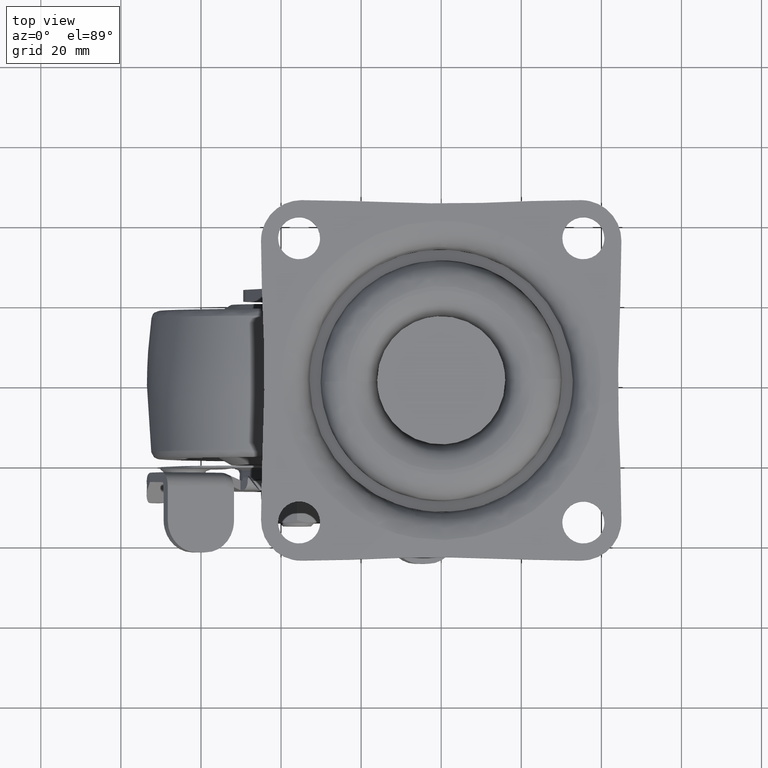
[diagram: clean part render]
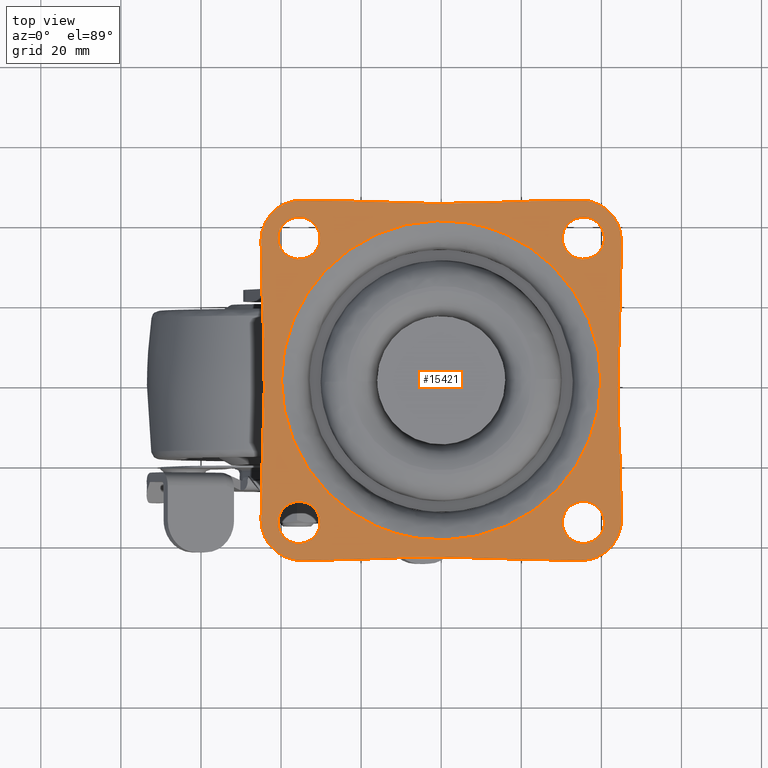
[diagram: same view with one face highlighted and labeled with its STEP entity id]
A machine part, top view. The second image highlights one B-rep face of the part: STEP entity #15421.
In plain terms, the highlighted face is a freeform B-spline surface patch.
Its self-contained STEP definition (entity closure, byte-faithful):
#14844=CARTESIAN_POINT('',(-49.506265960209539,49.506265952679193,0.0));
#14845=CARTESIAN_POINT('',(49.506267570937290,49.506265952679193,0.0));
#14846=CARTESIAN_POINT('',(-49.506265960209539,-49.506267570579041,0.0));
#14847=CARTESIAN_POINT('',(49.506267570937290,-49.506267570579041,0.0));
#14848=B_SPLINE_SURFACE_WITH_KNOTS('',1,1,((#14844,#14846),(#14845,#14847)),.UNSPECIFIED.,.F.,.F.,.U.,(2,2),(2,2),(0.0,99.012533531146829),(0.0,99.012533523258242),.UNSPECIFIED.);
#14849=CARTESIAN_POINT('',(-22.568478716295200,44.780493398808453,0.0));
#14850=VERTEX_POINT('',#14849);
#14851=CARTESIAN_POINT('',(22.568440034629148,44.780491658686650,0.0));
#14852=VERTEX_POINT('',#14851);
#14853=CARTESIAN_POINT('',(-22.568478716295200,44.780493398808453,0.0));
#14854=CARTESIAN_POINT('',(-0.000019385621304,43.618738991454634,0.0));
#14855=CARTESIAN_POINT('',(22.568440047520092,44.780491408261511,0.0));
#14863=(BOUNDED_CURVE()B_SPLINE_CURVE(2,(#14853,#14854,#14855),.UNSPECIFIED.,.F.,.U.)CURVE()GEOMETRIC_REPRESENTATION_ITEM()QUASI_UNIFORM_CURVE()RATIONAL_B_SPLINE_CURVE((1.0,0.998677693841607,1.0))REPRESENTATION_ITEM(''));
#14864=EDGE_CURVE('',#14850,#14852,#14863,.T.);
#14865=ORIENTED_EDGE('',*,*,#14864,.F.);
#14866=CARTESIAN_POINT('',(-34.911363999999949,45.000030000000002,0.0));
#14867=VERTEX_POINT('',#14866);
#14868=CARTESIAN_POINT('',(-22.568478716295200,44.780493398808453,0.0));
#14869=CARTESIAN_POINT('',(-28.736938143472610,45.057985333240623,0.0));
#14870=CARTESIAN_POINT('',(-34.911364001323740,45.000030141035900,0.0));
#14878=(BOUNDED_CURVE()B_SPLINE_CURVE(2,(#14868,#14869,#14870),.UNSPECIFIED.,.F.,.U.)CURVE()GEOMETRIC_REPRESENTATION_ITEM()QUASI_UNIFORM_CURVE()RATIONAL_B_SPLINE_CURVE((1.0,0.999630899807016,1.0))REPRESENTATION_ITEM(''));
#14879=EDGE_CURVE('',#14850,#14867,#14878,.T.);
#14880=ORIENTED_EDGE('',*,*,#14879,.T.);
#14881=CARTESIAN_POINT('',(-45.000029999988797,34.911379028132103,0.0));
#14882=VERTEX_POINT('',#14881);
#14883=CARTESIAN_POINT('',(-34.911363999999949,45.000030000000031,0.0));
#14884=CARTESIAN_POINT('',(-45.000014971879075,45.000030000000031,0.0));
#14885=CARTESIAN_POINT('',(-45.000029999988740,34.911379028132103,0.0));
#14893=(BOUNDED_CURVE()B_SPLINE_CURVE(2,(#14883,#14884,#14885),.UNSPECIFIED.,.F.,.U.)CURVE()GEOMETRIC_REPRESENTATION_ITEM()QUASI_UNIFORM_CURVE()RATIONAL_B_SPLINE_CURVE((1.0,0.707107307841416,1.0))REPRESENTATION_ITEM(''));
#14894=EDGE_CURVE('',#14867,#14882,#14893,.T.);
#14895=ORIENTED_EDGE('',*,*,#14894,.T.);
#14896=CARTESIAN_POINT('',(-44.780491321962650,22.568438371059301,0.0));
#14897=VERTEX_POINT('',#14896);
#14898=CARTESIAN_POINT('',(-45.000029999988840,34.911379028132231,0.0));
#14899=CARTESIAN_POINT('',(-45.057985860885104,28.736925442227552,0.0));
#14900=CARTESIAN_POINT('',(-44.780491583320732,22.568438359301879,0.0));
#14908=(BOUNDED_CURVE()B_SPLINE_CURVE(2,(#14898,#14899,#14900),.UNSPECIFIED.,.F.,.U.)CURVE()GEOMETRIC_REPRESENTATION_ITEM()QUASI_UNIFORM_CURVE()RATIONAL_B_SPLINE_CURVE((1.0,0.999630896493283,1.0))REPRESENTATION_ITEM(''));
#14909=EDGE_CURVE('',#14882,#14897,#14908,.T.);
#14910=ORIENTED_EDGE('',*,*,#14909,.T.);
#14911=CARTESIAN_POINT('',(-44.780491658686550,-22.568440034628949,0.0));
#14912=VERTEX_POINT('',#14911);
#14913=CARTESIAN_POINT('',(-44.780491658686550,-22.568440034628949,0.0));
#14914=CARTESIAN_POINT('',(-43.618740032628445,-0.000000840451468,0.0));
#14915=CARTESIAN_POINT('',(-44.780491321962657,22.568438371059269,0.0));
#14923=(BOUNDED_CURVE()B_SPLINE_CURVE(2,(#14913,#14914,#14915),.UNSPECIFIED.,.F.,.U.)CURVE()GEOMETRIC_REPRESENTATION_ITEM()QUASI_UNIFORM_CURVE()RATIONAL_B_SPLINE_CURVE((1.0,0.998677696207034,1.0))REPRESENTATION_ITEM(''));
#14924=EDGE_CURVE('',#14912,#14897,#14923,.T.);
#14925=ORIENTED_EDGE('',*,*,#14924,.F.);
#14926=CARTESIAN_POINT('',(-45.000030000000002,-34.911363999999999,0.0));
#14927=VERTEX_POINT('',#14926);
#14928=CARTESIAN_POINT('',(-44.780491658686643,-22.568440034628900,0.0));
#14929=CARTESIAN_POINT('',(-45.057985515089854,-28.736918769632716,0.0));
#14930=CARTESIAN_POINT('',(-45.000030141035900,-34.911364001323733,0.0));
#14938=(BOUNDED_CURVE()B_SPLINE_CURVE(2,(#14928,#14929,#14930),.UNSPECIFIED.,.F.,.U.)CURVE()GEOMETRIC_REPRESENTATION_ITEM()QUASI_UNIFORM_CURVE()RATIONAL_B_SPLINE_CURVE((1.0,0.999630897492002,1.0))REPRESENTATION_ITEM(''));
#14939=EDGE_CURVE('',#14912,#14927,#14938,.T.);
#14940=ORIENTED_EDGE('',*,*,#14939,.T.);
#14941=CARTESIAN_POINT('',(-34.911379028074201,-45.000029999989202,0.0));
#14942=VERTEX_POINT('',#14941);
#14943=CARTESIAN_POINT('',(-45.000029999999931,-34.911363999999999,0.0));
#14944=CARTESIAN_POINT('',(-45.000029999999924,-45.000014971936935,0.0));
#14945=CARTESIAN_POINT('',(-34.911379028074187,-45.000029999988790,0.0));
#14953=(BOUNDED_CURVE()B_SPLINE_CURVE(2,(#14943,#14944,#14945),.UNSPECIFIED.,.F.,.U.)CURVE()GEOMETRIC_REPRESENTATION_ITEM()QUASI_UNIFORM_CURVE()RATIONAL_B_SPLINE_CURVE((1.0,0.707107307839390,1.0))REPRESENTATION_ITEM(''));
#14954=EDGE_CURVE('',#14927,#14942,#14953,.T.);
#14955=ORIENTED_EDGE('',*,*,#14954,.T.);
#14956=CARTESIAN_POINT('',(-22.568478716295200,-44.780493398808453,0.0));
#14957=VERTEX_POINT('',#14956);
#14958=CARTESIAN_POINT('',(-34.911379028074201,-45.000029999989202,0.0));
#14959=CARTESIAN_POINT('',(-28.736945655131464,-45.057985671157233,0.0));
#14960=CARTESIAN_POINT('',(-22.568478716295250,-44.780493398808460,0.0));
#14968=(BOUNDED_CURVE()B_SPLINE_CURVE(2,(#14958,#14959,#14960),.UNSPECIFIED.,.F.,.U.)CURVE()GEOMETRIC_REPRESENTATION_ITEM()QUASI_UNIFORM_CURVE()RATIONAL_B_SPLINE_CURVE((1.0,0.999630898908567,1.0))REPRESENTATION_ITEM(''));
#14969=EDGE_CURVE('',#14942,#14957,#14968,.T.);
#14970=ORIENTED_EDGE('',*,*,#14969,.T.);
#14971=CARTESIAN_POINT('',(22.568440034628999,-44.780491658686451,0.0));
#14972=VERTEX_POINT('',#14971);
#14973=CARTESIAN_POINT('',(22.568440034628999,-44.780491658686451,0.0));
#14974=CARTESIAN_POINT('',(-0.000019385621631,-43.618738991454634,0.0));
#14975=CARTESIAN_POINT('',(-22.568478716295161,-44.780493398808566,0.0));
#14983=(BOUNDED_CURVE()B_SPLINE_CURVE(2,(#14973,#14974,#14975),.UNSPECIFIED.,.F.,.U.)CURVE()GEOMETRIC_REPRESENTATION_ITEM()QUASI_UNIFORM_CURVE()RATIONAL_B_SPLINE_CURVE((1.0,0.998677693841607,1.0))REPRESENTATION_ITEM(''));
#14984=EDGE_CURVE('',#14972,#14957,#14983,.T.);
#14985=ORIENTED_EDGE('',*,*,#14984,.F.);
#14986=CARTESIAN_POINT('',(34.911363000000101,-45.000030000000002,0.0));
#14987=VERTEX_POINT('',#14986);
#14988=CARTESIAN_POINT('',(22.568440034628999,-44.780491658686451,0.0));
#14989=CARTESIAN_POINT('',(28.736918269790962,-45.057985492604097,0.0));
#14990=CARTESIAN_POINT('',(34.911363001411928,-45.000030150421402,0.0));
#14998=(BOUNDED_CURVE()B_SPLINE_CURVE(2,(#14988,#14989,#14990),.UNSPECIFIED.,.F.,.U.)CURVE()GEOMETRIC_REPRESENTATION_ITEM()QUASI_UNIFORM_CURVE()RATIONAL_B_SPLINE_CURVE((1.0,0.999630897551787,1.0))REPRESENTATION_ITEM(''));
#14999=EDGE_CURVE('',#14972,#14987,#14998,.T.);
#15000=ORIENTED_EDGE('',*,*,#14999,.T.);
#15001=CARTESIAN_POINT('',(45.000028999266803,-34.911485639563899,0.0));
#15002=VERTEX_POINT('',#15001);
#15003=CARTESIAN_POINT('',(34.911363000000101,-45.000029999999981,0.0));
#15004=CARTESIAN_POINT('',(44.999907361169470,-45.000029999999981,0.0));
#15005=CARTESIAN_POINT('',(45.000028999266767,-34.911485639563899,0.0));
#15013=(BOUNDED_CURVE()B_SPLINE_CURVE(2,(#15003,#15004,#15005),.UNSPECIFIED.,.F.,.U.)CURVE()GEOMETRIC_REPRESENTATION_ITEM()QUASI_UNIFORM_CURVE()RATIONAL_B_SPLINE_CURVE((1.0,0.707111043985080,1.0))REPRESENTATION_ITEM(''));
#15014=EDGE_CURVE('',#14987,#15002,#15013,.T.);
#15015=ORIENTED_EDGE('',*,*,#15014,.T.);
#15016=CARTESIAN_POINT('',(44.780491321962650,-22.568438371060051,0.0));
#15017=VERTEX_POINT('',#15016);
#15018=CARTESIAN_POINT('',(45.000028999266803,-34.911485639563928,0.0));
#15019=CARTESIAN_POINT('',(45.057988258337225,-28.736978735768531,0.0));
#15020=CARTESIAN_POINT('',(44.780491583320760,-22.568438359302661,0.0));
#15028=(BOUNDED_CURVE()B_SPLINE_CURVE(2,(#15018,#15019,#15020),.UNSPECIFIED.,.F.,.U.)CURVE()GEOMETRIC_REPRESENTATION_ITEM()QUASI_UNIFORM_CURVE()RATIONAL_B_SPLINE_CURVE((1.0,0.999630890118939,1.0))REPRESENTATION_ITEM(''));
#15029=EDGE_CURVE('',#15002,#15017,#15028,.T.);
#15030=ORIENTED_EDGE('',*,*,#15029,.T.);
#15031=CARTESIAN_POINT('',(44.780491658686600,22.568440034629049,0.0));
#15032=VERTEX_POINT('',#15031);
#15033=CARTESIAN_POINT('',(44.780491658686600,22.568440034629049,0.0));
#15034=CARTESIAN_POINT('',(43.618740032628445,0.000000840451329,0.0));
#15035=CARTESIAN_POINT('',(44.780491321962707,-22.568438371059990,0.0));
#15043=(BOUNDED_CURVE()B_SPLINE_CURVE(2,(#15033,#15034,#15035),.UNSPECIFIED.,.F.,.U.)CURVE()GEOMETRIC_REPRESENTATION_ITEM()QUASI_UNIFORM_CURVE()RATIONAL_B_SPLINE_CURVE((1.0,0.998677696207034,1.0))REPRESENTATION_ITEM(''));
#15044=EDGE_CURVE('',#15032,#15017,#15043,.T.);
#15045=ORIENTED_EDGE('',*,*,#15044,.F.);
#15046=CARTESIAN_POINT('',(45.000030000000002,34.911363000000101,0.0));
#15047=VERTEX_POINT('',#15046);
#15048=CARTESIAN_POINT('',(44.780491658686643,22.568440034629031,0.0));
#15049=CARTESIAN_POINT('',(45.057985492604097,28.736918269790991,0.0));
#15050=CARTESIAN_POINT('',(45.000030150421402,34.911363001411971,0.0));
#15058=(BOUNDED_CURVE()B_SPLINE_CURVE(2,(#15048,#15049,#15050),.UNSPECIFIED.,.F.,.U.)CURVE()GEOMETRIC_REPRESENTATION_ITEM()QUASI_UNIFORM_CURVE()RATIONAL_B_SPLINE_CURVE((1.0,0.999630897551787,1.0))REPRESENTATION_ITEM(''));
#15059=EDGE_CURVE('',#15032,#15047,#15058,.T.);
#15060=ORIENTED_EDGE('',*,*,#15059,.T.);
#15061=CARTESIAN_POINT('',(34.911485639562201,45.000028999266803,0.0));
#15062=VERTEX_POINT('',#15061);
#15063=CARTESIAN_POINT('',(45.000030000000031,34.911363000000101,0.0));
#15064=CARTESIAN_POINT('',(45.000030000000031,44.999907361171225,0.0));
#15065=CARTESIAN_POINT('',(34.911485639562201,45.000028999266767,0.0));
#15073=(BOUNDED_CURVE()B_SPLINE_CURVE(2,(#15063,#15064,#15065),.UNSPECIFIED.,.F.,.U.)CURVE()GEOMETRIC_REPRESENTATION_ITEM()QUASI_UNIFORM_CURVE()RATIONAL_B_SPLINE_CURVE((1.0,0.707111043985018,1.0))REPRESENTATION_ITEM(''));
#15074=EDGE_CURVE('',#15047,#15062,#15073,.T.);
#15075=ORIENTED_EDGE('',*,*,#15074,.T.);
#15076=CARTESIAN_POINT('',(34.911485639562201,45.000028999266803,0.0));
#15077=CARTESIAN_POINT('',(28.736979574860289,45.057988250460731,0.0));
#15078=CARTESIAN_POINT('',(22.568440034629148,44.780491658686643,0.0));
#15086=(BOUNDED_CURVE()B_SPLINE_CURVE(2,(#15076,#15077,#15078),.UNSPECIFIED.,.F.,.U.)CURVE()GEOMETRIC_REPRESENTATION_ITEM()QUASI_UNIFORM_CURVE()RATIONAL_B_SPLINE_CURVE((1.0,0.999630890219205,1.0))REPRESENTATION_ITEM(''));
#15087=EDGE_CURVE('',#15062,#14852,#15086,.T.);
#15088=ORIENTED_EDGE('',*,*,#15087,.T.);
#15089=EDGE_LOOP('',(#14865,#14880,#14895,#14910,#14925,#14940,#14955,#14970,#14985,#15000,#15015,#15030,#15045,#15060,#15075,#15088));
#15090=FACE_OUTER_BOUND('',#15089,.T.);
#15091=CARTESIAN_POINT('',(39.875000000000000,0.0,0.0));
#15092=VERTEX_POINT('',#15091);
#15093=CARTESIAN_POINT('',(-16.065894123711971,-36.495241757099201,-1.189567E-015));
#15094=VERTEX_POINT('',#15093);
#15095=CARTESIAN_POINT('',(39.875000000000000,0.0,0.0));
#15096=CARTESIAN_POINT('',(39.875000000159119,-39.874999999638518,-3.880305E-016));
#15097=CARTESIAN_POINT('',(4.030339E-010,-39.874999999084451,-9.828143E-016));
#15098=CARTESIAN_POINT('',(-8.388444417866742,-39.874999998967873,-1.107938E-015));
#15099=CARTESIAN_POINT('',(-16.065894123711974,-36.495241757099208,-1.189567E-015));
#15107=(BOUNDED_CURVE()B_SPLINE_CURVE(2,(#15095,#15096,#15097,#15098,#15099),.UNSPECIFIED.,.F.,.U.)B_SPLINE_CURVE_WITH_KNOTS((3,2,3),(0.500000000000000,0.750000000000000,0.818414990139051),.UNSPECIFIED.)CURVE()GEOMETRIC_REPRESENTATION_ITEM()RATIONAL_B_SPLINE_CURVE((1.0,0.707106781186548,1.0,0.919846853292332,0.883563120517615))REPRESENTATION_ITEM(''));
#15108=EDGE_CURVE('',#15092,#15094,#15107,.T.);
#15109=ORIENTED_EDGE('',*,*,#15108,.T.);
#15110=CARTESIAN_POINT('',(-39.875000000000000,0.0,0.0));
#15111=VERTEX_POINT('',#15110);
#15112=CARTESIAN_POINT('',(-16.065894123711974,-36.495241757099208,-1.189567E-015));
#15113=CARTESIAN_POINT('',(-39.874999999756085,-26.014024049143494,-5.947837E-016));
#15114=CARTESIAN_POINT('',(-39.875000000000000,0.0,0.0));
#15122=(BOUNDED_CURVE()B_SPLINE_CURVE(2,(#15112,#15113,#15114),.UNSPECIFIED.,.F.,.U.)B_SPLINE_CURVE_WITH_KNOTS((3,3),(0.818414990139051,1.0),.UNSPECIFIED.)CURVE()GEOMETRIC_REPRESENTATION_ITEM()RATIONAL_B_SPLINE_CURVE((0.883563120517615,0.787259927894216,1.0))REPRESENTATION_ITEM(''));
#15123=EDGE_CURVE('',#15094,#15111,#15122,.T.);
#15124=ORIENTED_EDGE('',*,*,#15123,.T.);
#15125=CARTESIAN_POINT('',(16.065894123711981,36.495241757099201,-1.189567E-015));
#15126=VERTEX_POINT('',#15125);
#15127=CARTESIAN_POINT('',(-39.875000000000000,0.0,0.0));
#15128=CARTESIAN_POINT('',(-39.875000000159119,39.874999999638518,-3.880305E-016));
#15129=CARTESIAN_POINT('',(-4.030427E-010,39.874999999084451,-9.828143E-016));
#15130=CARTESIAN_POINT('',(8.388444417866740,39.874999998967880,-1.107938E-015));
#15131=CARTESIAN_POINT('',(16.065894123711978,36.495241757099201,-1.189567E-015));
#15139=(BOUNDED_CURVE()B_SPLINE_CURVE(2,(#15127,#15128,#15129,#15130,#15131),.UNSPECIFIED.,.F.,.U.)B_SPLINE_CURVE_WITH_KNOTS((3,2,3),(0.0,0.250000000000000,0.318414990139051),.UNSPECIFIED.)CURVE()GEOMETRIC_REPRESENTATION_ITEM()RATIONAL_B_SPLINE_CURVE((1.0,0.707106781186548,1.0,0.919846853292332,0.883563120517615))REPRESENTATION_ITEM(''));
#15140=EDGE_CURVE('',#15111,#15126,#15139,.T.);
#15141=ORIENTED_EDGE('',*,*,#15140,.T.);
#15142=CARTESIAN_POINT('',(16.065894123711978,36.495241757099201,-1.189567E-015));
#15143=CARTESIAN_POINT('',(39.874999999756085,26.014024049143483,-5.947837E-016));
#15144=CARTESIAN_POINT('',(39.875000000000000,0.0,0.0));
#15152=(BOUNDED_CURVE()B_SPLINE_CURVE(2,(#15142,#15143,#15144),.UNSPECIFIED.,.F.,.U.)B_SPLINE_CURVE_WITH_KNOTS((3,3),(0.318414990139051,0.500000000000000),.UNSPECIFIED.)CURVE()GEOMETRIC_REPRESENTATION_ITEM()RATIONAL_B_SPLINE_CURVE((0.883563120517615,0.787259927894216,1.0))REPRESENTATION_ITEM(''));
#15153=EDGE_CURVE('',#15126,#15092,#15152,.T.);
#15154=ORIENTED_EDGE('',*,*,#15153,.T.);
#15155=EDGE_LOOP('',(#15109,#15124,#15141,#15154));
#15156=FACE_BOUND('',#15155,.T.);
#15157=CARTESIAN_POINT('',(-30.250000000000000,-35.500000000000000,0.0));
#15158=VERTEX_POINT('',#15157);
#15159=CARTESIAN_POINT('',(-35.179495167114169,-30.259792308305251,-8.326673E-017));
#15160=VERTEX_POINT('',#15159);
#15161=CARTESIAN_POINT('',(-30.250000000000000,-35.500000000000000,0.0));
#15162=CARTESIAN_POINT('',(-30.249999999999996,-30.561293149054634,0.0));
#15163=CARTESIAN_POINT('',(-35.179495167114162,-30.259792308305236,0.0));
#15171=(BOUNDED_CURVE()B_SPLINE_CURVE(2,(#15161,#15162,#15163),.UNSPECIFIED.,.F.,.U.)B_SPLINE_CURVE_WITH_KNOTS((3,3),(0.500000000000000,0.739332962231174),.UNSPECIFIED.)CURVE()GEOMETRIC_REPRESENTATION_ITEM()RATIONAL_B_SPLINE_CURVE((1.0,0.719603993295812,0.976072041650067))REPRESENTATION_ITEM(''));
#15172=EDGE_CURVE('',#15158,#15160,#15171,.T.);
#15173=ORIENTED_EDGE('',*,*,#15172,.F.);
#15174=CARTESIAN_POINT('',(-35.820504832885831,-40.740207691694749,-8.326673E-017));
#15175=VERTEX_POINT('',#15174);
#15176=CARTESIAN_POINT('',(-35.820504832885838,-40.740207691694742,0.0));
#15177=CARTESIAN_POINT('',(-35.660402007481970,-40.749999999999986,0.0));
#15178=CARTESIAN_POINT('',(-35.500000000000000,-40.749999999999993,0.0));
#15179=CARTESIAN_POINT('',(-30.249999999999986,-40.749999999999986,0.0));
#15180=CARTESIAN_POINT('',(-30.250000000000000,-35.500000000000000,0.0));
#15188=(BOUNDED_CURVE()B_SPLINE_CURVE(2,(#15176,#15177,#15178,#15179,#15180),.UNSPECIFIED.,.F.,.U.)B_SPLINE_CURVE_WITH_KNOTS((3,2,3),(0.239332962231174,0.250000000000000,0.500000000000000),.UNSPECIFIED.)CURVE()GEOMETRIC_REPRESENTATION_ITEM()RATIONAL_B_SPLINE_CURVE((0.976072041650066,0.987502787890735,1.0,0.707106781186547,1.0))REPRESENTATION_ITEM(''));
#15189=EDGE_CURVE('',#15175,#15158,#15188,.T.);
#15190=ORIENTED_EDGE('',*,*,#15189,.F.);
#15191=CARTESIAN_POINT('',(-40.749999999999993,-35.500000000000000,0.0));
#15192=VERTEX_POINT('',#15191);
#15193=CARTESIAN_POINT('',(-40.749999999999993,-35.500000000000000,0.0));
#15194=CARTESIAN_POINT('',(-40.750000000000000,-40.438706850945344,0.0));
#15195=CARTESIAN_POINT('',(-35.820504832885838,-40.740207691694742,0.0));
#15203=(BOUNDED_CURVE()B_SPLINE_CURVE(2,(#15193,#15194,#15195),.UNSPECIFIED.,.F.,.U.)B_SPLINE_CURVE_WITH_KNOTS((3,3),(0.0,0.239332962231174),.UNSPECIFIED.)CURVE()GEOMETRIC_REPRESENTATION_ITEM()RATIONAL_B_SPLINE_CURVE((1.0,0.719603993295812,0.976072041650066))REPRESENTATION_ITEM(''));
#15204=EDGE_CURVE('',#15192,#15175,#15203,.T.);
#15205=ORIENTED_EDGE('',*,*,#15204,.F.);
#15206=CARTESIAN_POINT('',(-35.179495167114162,-30.259792308305236,0.0));
#15207=CARTESIAN_POINT('',(-35.339597992518030,-30.249999999999993,0.0));
#15208=CARTESIAN_POINT('',(-35.500000000000000,-30.250000000000000,0.0));
#15209=CARTESIAN_POINT('',(-40.749999999999986,-30.249999999999986,0.0));
#15210=CARTESIAN_POINT('',(-40.749999999999993,-35.500000000000000,0.0));
#15218=(BOUNDED_CURVE()B_SPLINE_CURVE(2,(#15206,#15207,#15208,#15209,#15210),.UNSPECIFIED.,.F.,.U.)B_SPLINE_CURVE_WITH_KNOTS((3,2,3),(0.739332962231174,0.750000000000000,1.0),.UNSPECIFIED.)CURVE()GEOMETRIC_REPRESENTATION_ITEM()RATIONAL_B_SPLINE_CURVE((0.976072041650067,0.987502787890735,1.0,0.707106781186547,1.0))REPRESENTATION_ITEM(''));
#15219=EDGE_CURVE('',#15160,#15192,#15218,.T.);
#15220=ORIENTED_EDGE('',*,*,#15219,.F.);
#15221=EDGE_LOOP('',(#15173,#15190,#15205,#15220));
#15222=FACE_BOUND('',#15221,.T.);
#15223=CARTESIAN_POINT('',(40.749999999999993,-35.500000000000000,0.0));
#15224=VERTEX_POINT('',#15223);
#15225=CARTESIAN_POINT('',(35.820504832885831,-30.259792308305251,-8.326673E-017));
#15226=VERTEX_POINT('',#15225);
#15227=CARTESIAN_POINT('',(40.749999999999993,-35.500000000000000,0.0));
#15228=CARTESIAN_POINT('',(40.749999999999986,-30.561293149054642,0.0));
#15229=CARTESIAN_POINT('',(35.820504832885831,-30.259792308305244,0.0));
#15237=(BOUNDED_CURVE()B_SPLINE_CURVE(2,(#15227,#15228,#15229),.UNSPECIFIED.,.F.,.U.)B_SPLINE_CURVE_WITH_KNOTS((3,3),(0.500000000000000,0.739332962231174),.UNSPECIFIED.)CURVE()GEOMETRIC_REPRESENTATION_ITEM()RATIONAL_B_SPLINE_CURVE((1.0,0.719603993295812,0.976072041650067))REPRESENTATION_ITEM(''));
#15238=EDGE_CURVE('',#15224,#15226,#15237,.T.);
#15239=ORIENTED_EDGE('',*,*,#15238,.F.);
#15240=CARTESIAN_POINT('',(35.179495167114169,-40.740207691694749,-8.326673E-017));
#15241=VERTEX_POINT('',#15240);
#15242=CARTESIAN_POINT('',(35.179495167114176,-40.740207691694742,0.0));
#15243=CARTESIAN_POINT('',(35.339597992518037,-40.749999999999986,0.0));
#15244=CARTESIAN_POINT('',(35.500000000000000,-40.749999999999993,0.0));
#15245=CARTESIAN_POINT('',(40.749999999999986,-40.749999999999986,0.0));
#15246=CARTESIAN_POINT('',(40.749999999999993,-35.500000000000000,0.0));
#15254=(BOUNDED_CURVE()B_SPLINE_CURVE(2,(#15242,#15243,#15244,#15245,#15246),.UNSPECIFIED.,.F.,.U.)B_SPLINE_CURVE_WITH_KNOTS((3,2,3),(0.239332962231174,0.250000000000000,0.500000000000000),.UNSPECIFIED.)CURVE()GEOMETRIC_REPRESENTATION_ITEM()RATIONAL_B_SPLINE_CURVE((0.976072041650067,0.987502787890735,1.0,0.707106781186547,1.0))REPRESENTATION_ITEM(''));
#15255=EDGE_CURVE('',#15241,#15224,#15254,.T.);
#15256=ORIENTED_EDGE('',*,*,#15255,.F.);
#15257=CARTESIAN_POINT('',(30.250000000000000,-35.500000000000000,0.0));
#15258=VERTEX_POINT('',#15257);
#15259=CARTESIAN_POINT('',(30.250000000000000,-35.500000000000000,0.0));
#15260=CARTESIAN_POINT('',(30.249999999999986,-40.438706850945344,0.0));
#15261=CARTESIAN_POINT('',(35.179495167114176,-40.740207691694749,0.0));
#15269=(BOUNDED_CURVE()B_SPLINE_CURVE(2,(#15259,#15260,#15261),.UNSPECIFIED.,.F.,.U.)B_SPLINE_CURVE_WITH_KNOTS((3,3),(0.0,0.239332962231174),.UNSPECIFIED.)CURVE()GEOMETRIC_REPRESENTATION_ITEM()RATIONAL_B_SPLINE_CURVE((1.0,0.719603993295812,0.976072041650067))REPRESENTATION_ITEM(''));
#15270=EDGE_CURVE('',#15258,#15241,#15269,.T.);
#15271=ORIENTED_EDGE('',*,*,#15270,.F.);
#15272=CARTESIAN_POINT('',(35.820504832885831,-30.259792308305244,0.0));
#15273=CARTESIAN_POINT('',(35.660402007481963,-30.250000000000000,0.0));
#15274=CARTESIAN_POINT('',(35.500000000000000,-30.250000000000000,0.0));
#15275=CARTESIAN_POINT('',(30.249999999999986,-30.249999999999986,0.0));
#15276=CARTESIAN_POINT('',(30.250000000000000,-35.500000000000000,0.0));
#15284=(BOUNDED_CURVE()B_SPLINE_CURVE(2,(#15272,#15273,#15274,#15275,#15276),.UNSPECIFIED.,.F.,.U.)B_SPLINE_CURVE_WITH_KNOTS((3,2,3),(0.739332962231174,0.750000000000000,1.0),.UNSPECIFIED.)CURVE()GEOMETRIC_REPRESENTATION_ITEM()RATIONAL_B_SPLINE_CURVE((0.976072041650067,0.987502787890735,1.0,0.707106781186547,1.0))REPRESENTATION_ITEM(''));
#15285=EDGE_CURVE('',#15226,#15258,#15284,.T.);
#15286=ORIENTED_EDGE('',*,*,#15285,.F.);
#15287=EDGE_LOOP('',(#15239,#15256,#15271,#15286));
#15288=FACE_BOUND('',#15287,.T.);
#15289=CARTESIAN_POINT('',(40.749999999999993,35.500000000000000,0.0));
#15290=VERTEX_POINT('',#15289);
#15291=CARTESIAN_POINT('',(35.820504832885831,40.740207691694749,-8.326673E-017));
#15292=VERTEX_POINT('',#15291);
#15293=CARTESIAN_POINT('',(40.749999999999993,35.500000000000000,0.0));
#15294=CARTESIAN_POINT('',(40.749999999999986,40.438706850945344,0.0));
#15295=CARTESIAN_POINT('',(35.820504832885831,40.740207691694749,0.0));
#15303=(BOUNDED_CURVE()B_SPLINE_CURVE(2,(#15293,#15294,#15295),.UNSPECIFIED.,.F.,.U.)B_SPLINE_CURVE_WITH_KNOTS((3,3),(0.500000000000000,0.739332962231174),.UNSPECIFIED.)CURVE()GEOMETRIC_REPRESENTATION_ITEM()RATIONAL_B_SPLINE_CURVE((1.0,0.719603993295812,0.976072041650067))REPRESENTATION_ITEM(''));
#15304=EDGE_CURVE('',#15290,#15292,#15303,.T.);
#15305=ORIENTED_EDGE('',*,*,#15304,.F.);
#15306=CARTESIAN_POINT('',(35.179495167114169,30.259792308305251,-8.326673E-017));
#15307=VERTEX_POINT('',#15306);
#15308=CARTESIAN_POINT('',(35.179495167114176,30.259792308305247,0.0));
#15309=CARTESIAN_POINT('',(35.339597992518044,30.250000000000004,0.0));
#15310=CARTESIAN_POINT('',(35.500000000000000,30.250000000000000,0.0));
#15311=CARTESIAN_POINT('',(40.749999999999986,30.249999999999986,0.0));
#15312=CARTESIAN_POINT('',(40.749999999999993,35.500000000000000,0.0));
#15320=(BOUNDED_CURVE()B_SPLINE_CURVE(2,(#15308,#15309,#15310,#15311,#15312),.UNSPECIFIED.,.F.,.U.)B_SPLINE_CURVE_WITH_KNOTS((3,2,3),(0.239332962231174,0.250000000000000,0.500000000000000),.UNSPECIFIED.)CURVE()GEOMETRIC_REPRESENTATION_ITEM()RATIONAL_B_SPLINE_CURVE((0.976072041650067,0.987502787890735,1.0,0.707106781186547,1.0))REPRESENTATION_ITEM(''));
#15321=EDGE_CURVE('',#15307,#15290,#15320,.T.);
#15322=ORIENTED_EDGE('',*,*,#15321,.F.);
#15323=CARTESIAN_POINT('',(30.250000000000000,35.500000000000000,0.0));
#15324=VERTEX_POINT('',#15323);
#15325=CARTESIAN_POINT('',(30.250000000000000,35.500000000000000,0.0));
#15326=CARTESIAN_POINT('',(30.249999999999989,30.561293149054645,0.0));
#15327=CARTESIAN_POINT('',(35.179495167114176,30.259792308305240,0.0));
#15335=(BOUNDED_CURVE()B_SPLINE_CURVE(2,(#15325,#15326,#15327),.UNSPECIFIED.,.F.,.U.)B_SPLINE_CURVE_WITH_KNOTS((3,3),(0.0,0.239332962231174),.UNSPECIFIED.)CURVE()GEOMETRIC_REPRESENTATION_ITEM()RATIONAL_B_SPLINE_CURVE((1.0,0.719603993295812,0.976072041650067))REPRESENTATION_ITEM(''));
#15336=EDGE_CURVE('',#15324,#15307,#15335,.T.);
#15337=ORIENTED_EDGE('',*,*,#15336,.F.);
#15338=CARTESIAN_POINT('',(35.820504832885824,40.740207691694742,0.0));
#15339=CARTESIAN_POINT('',(35.660402007481963,40.750000000000000,0.0));
#15340=CARTESIAN_POINT('',(35.500000000000000,40.749999999999993,0.0));
#15341=CARTESIAN_POINT('',(30.249999999999986,40.749999999999986,0.0));
#15342=CARTESIAN_POINT('',(30.250000000000000,35.500000000000000,0.0));
#15350=(BOUNDED_CURVE()B_SPLINE_CURVE(2,(#15338,#15339,#15340,#15341,#15342),.UNSPECIFIED.,.F.,.U.)B_SPLINE_CURVE_WITH_KNOTS((3,2,3),(0.739332962231174,0.750000000000000,1.0),.UNSPECIFIED.)CURVE()GEOMETRIC_REPRESENTATION_ITEM()RATIONAL_B_SPLINE_CURVE((0.976072041650067,0.987502787890735,1.0,0.707106781186547,1.0))REPRESENTATION_ITEM(''));
#15351=EDGE_CURVE('',#15292,#15324,#15350,.T.);
#15352=ORIENTED_EDGE('',*,*,#15351,.F.);
#15353=EDGE_LOOP('',(#15305,#15322,#15337,#15352));
#15354=FACE_BOUND('',#15353,.T.);
#15355=CARTESIAN_POINT('',(-30.250000000000000,35.500000000000000,0.0));
#15356=VERTEX_POINT('',#15355);
#15357=CARTESIAN_POINT('',(-35.179495167114162,40.740207691694749,-8.326673E-017));
#15358=VERTEX_POINT('',#15357);
#15359=CARTESIAN_POINT('',(-30.250000000000000,35.500000000000000,0.0));
#15360=CARTESIAN_POINT('',(-30.249999999999986,40.438706850945323,0.0));
#15361=CARTESIAN_POINT('',(-35.179495167114162,40.740207691694742,0.0));
#15369=(BOUNDED_CURVE()B_SPLINE_CURVE(2,(#15359,#15360,#15361),.UNSPECIFIED.,.F.,.U.)B_SPLINE_CURVE_WITH_KNOTS((3,3),(0.500000000000000,0.739332962231173),.UNSPECIFIED.)CURVE()GEOMETRIC_REPRESENTATION_ITEM()RATIONAL_B_SPLINE_CURVE((1.0,0.719603993295813,0.976072041650066))REPRESENTATION_ITEM(''));
#15370=EDGE_CURVE('',#15356,#15358,#15369,.T.);
#15371=ORIENTED_EDGE('',*,*,#15370,.F.);
#15372=CARTESIAN_POINT('',(-35.820504832885838,30.259792308305251,-8.326673E-017));
#15373=VERTEX_POINT('',#15372);
#15374=CARTESIAN_POINT('',(-35.820504832885845,30.259792308305244,0.0));
#15375=CARTESIAN_POINT('',(-35.660402007481970,30.250000000000000,0.0));
#15376=CARTESIAN_POINT('',(-35.500000000000000,30.250000000000000,0.0));
#15377=CARTESIAN_POINT('',(-30.249999999999986,30.249999999999986,0.0));
#15378=CARTESIAN_POINT('',(-30.250000000000000,35.500000000000000,0.0));
#15386=(BOUNDED_CURVE()B_SPLINE_CURVE(2,(#15374,#15375,#15376,#15377,#15378),.UNSPECIFIED.,.F.,.U.)B_SPLINE_CURVE_WITH_KNOTS((3,2,3),(0.239332962231173,0.250000000000000,0.500000000000000),.UNSPECIFIED.)CURVE()GEOMETRIC_REPRESENTATION_ITEM()RATIONAL_B_SPLINE_CURVE((0.976072041650066,0.987502787890735,1.0,0.707106781186547,1.0))REPRESENTATION_ITEM(''));
#15387=EDGE_CURVE('',#15373,#15356,#15386,.T.);
#15388=ORIENTED_EDGE('',*,*,#15387,.F.);
#15389=CARTESIAN_POINT('',(-40.749999999999993,35.500000000000000,0.0));
#15390=VERTEX_POINT('',#15389);
#15391=CARTESIAN_POINT('',(-40.749999999999993,35.500000000000000,0.0));
#15392=CARTESIAN_POINT('',(-40.749999999999986,30.561293149054645,0.0));
#15393=CARTESIAN_POINT('',(-35.820504832885845,30.259792308305244,0.0));
#15401=(BOUNDED_CURVE()B_SPLINE_CURVE(2,(#15391,#15392,#15393),.UNSPECIFIED.,.F.,.U.)B_SPLINE_CURVE_WITH_KNOTS((3,3),(0.0,0.239332962231173),.UNSPECIFIED.)CURVE()GEOMETRIC_REPRESENTATION_ITEM()RATIONAL_B_SPLINE_CURVE((1.0,0.719603993295813,0.976072041650066))REPRESENTATION_ITEM(''));
#15402=EDGE_CURVE('',#15390,#15373,#15401,.T.);
#15403=ORIENTED_EDGE('',*,*,#15402,.F.);
#15404=CARTESIAN_POINT('',(-35.179495167114176,40.740207691694742,0.0));
#15405=CARTESIAN_POINT('',(-35.339597992518030,40.749999999999993,0.0));
#15406=CARTESIAN_POINT('',(-35.500000000000000,40.749999999999993,0.0));
#15407=CARTESIAN_POINT('',(-40.749999999999986,40.749999999999986,0.0));
#15408=CARTESIAN_POINT('',(-40.749999999999993,35.500000000000000,0.0));
#15416=(BOUNDED_CURVE()B_SPLINE_CURVE(2,(#15404,#15405,#15406,#15407,#15408),.UNSPECIFIED.,.F.,.U.)B_SPLINE_CURVE_WITH_KNOTS((3,2,3),(0.739332962231173,0.750000000000000,1.0),.UNSPECIFIED.)CURVE()GEOMETRIC_REPRESENTATION_ITEM()RATIONAL_B_SPLINE_CURVE((0.976072041650066,0.987502787890735,1.0,0.707106781186547,1.0))REPRESENTATION_ITEM(''));
#15417=EDGE_CURVE('',#15358,#15390,#15416,.T.);
#15418=ORIENTED_EDGE('',*,*,#15417,.F.);
#15419=EDGE_LOOP('',(#15371,#15388,#15403,#15418));
#15420=FACE_BOUND('',#15419,.T.);
#15421=ADVANCED_FACE('',(#15090,#15156,#15222,#15288,#15354,#15420),#14848,.F.);